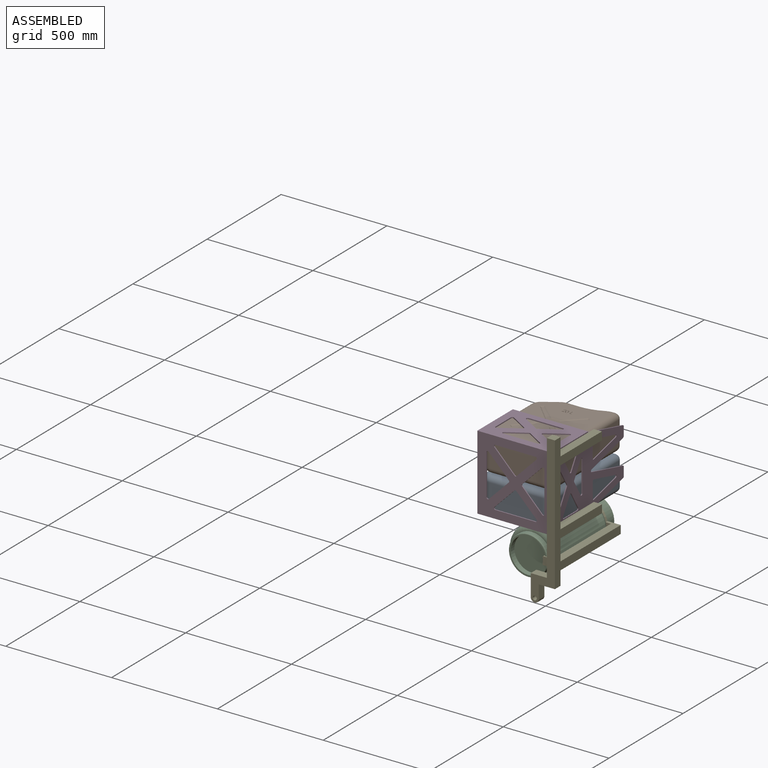
[diagram: assembled view]
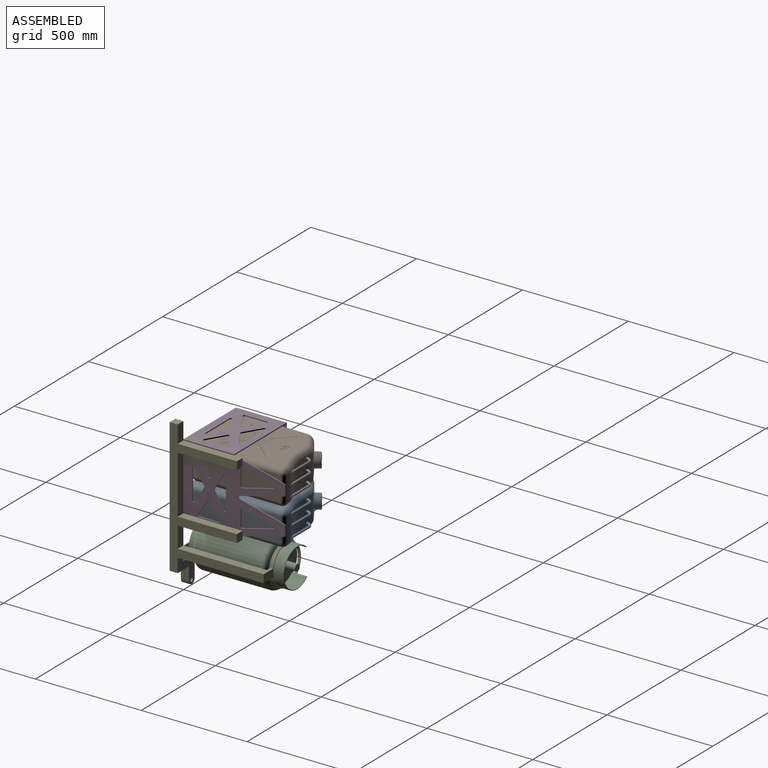
[diagram: assembled view, second angle]
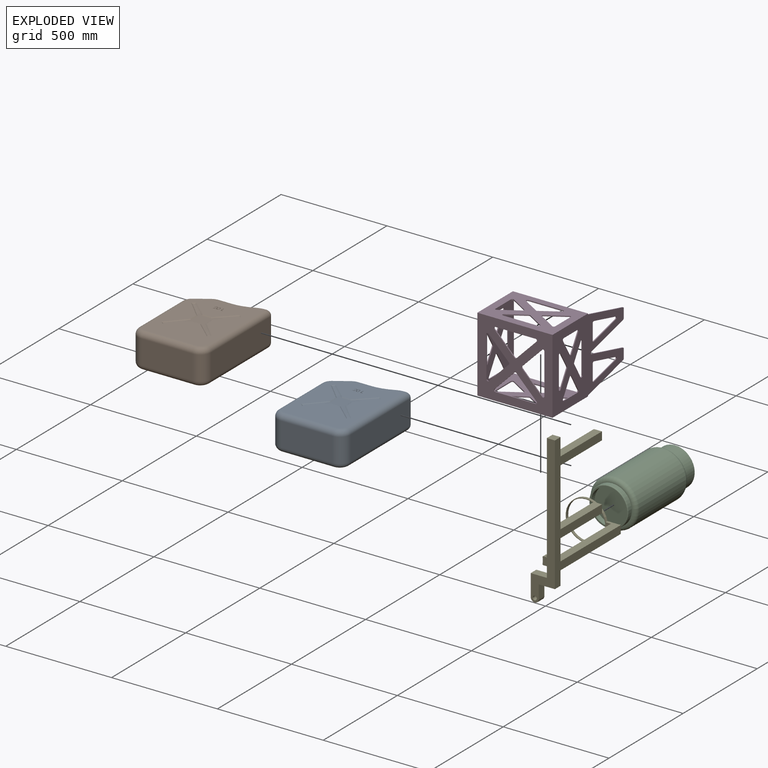
[diagram: exploded view]
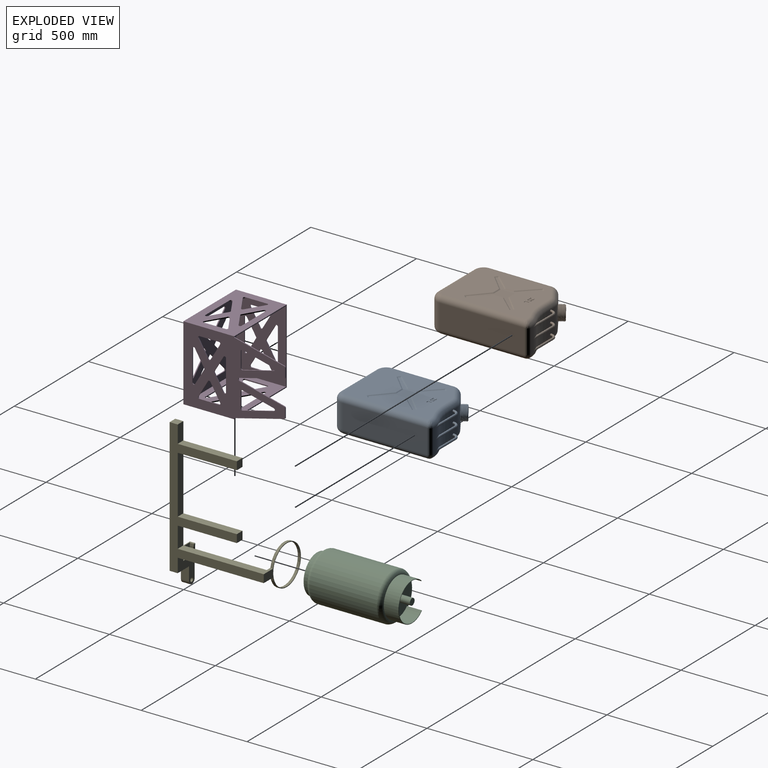
[diagram: exploded view, second angle]
ASSEMBLY  parts=5 mates=4
PART A: 123 faces, bbox 354.8x481.9x166.6 mm
  f0: cylinder r=213.36mm len=114.3mm, axis (0,0,-1), area 11122.5mm2, adj f2,f3,f4,f5,f9,f24,f42,f120
  f1: cylinder r=99.06mm len=114.3mm, axis (0,0,-1), area 4296.2mm2, adj f2,f3,f4,f5,f18,f20,f38,f120
  f2: plane 4.9x0.46mm, normal (-0.44,0.9,0), area 2.2mm2, adj f0,f1,f22,f122
  f3: plane 47.88x0.46mm, normal (-0.44,0.9,0), area 23mm2, adj f0,f1,f120,f122
  f4: plane 47.88x0.46mm, normal (-0.44,0.9,0), area 23mm2, adj f0,f1,f120,f121
  f5: plane 4.9x0.46mm, normal (-0.44,0.9,0), area 2.2mm2, adj f0,f1,f40,f121
  f6: plane 417.2x294.13mm, normal (0,0,-1), area 97143.8mm2, adj f19,f20,f22,f23,f24,f25,f26,f27
  f7: plane 417.2x294.13mm, normal (0,0,1), area 96805.4mm2, adj f33,f35,f36,f37,f38,f39,f40,f41
  f8: plane 115.84x64.41mm, normal (-0.55,0.83,0), area 5166mm2, adj f10,f11,f30,f45,f48,f50,f51,f52
  f9: plane 114.32x58.44mm, normal (0,1,0), area 6434.2mm2, adj f0,f10,f26,f44,f120,f121,f122
  f10: cylinder r=63.5mm len=114.3mm, axis (0,0,-1), area 4233.7mm2, adj f8,f9,f28,f46
  f11: cylinder r=50.8mm len=114.3mm, axis (0,0,-1), area 5733.8mm2, adj f8,f12,f32,f43
  f12: plane 290.66x114.3mm, normal (-1,0,0), area 33222.2mm2, adj f11,f13,f31,f41
  f13: cylinder r=50.8mm len=114.3mm, axis (0,0,-1), area 9120.7mm2, adj f12,f14,f29,f39
  f14: plane 243.33x114.3mm, normal (0,-1,0), area 27812.8mm2, adj f13,f15,f27,f37
  f15: cylinder r=50.8mm len=114.3mm, axis (0,0,-1), area 9120.7mm2, adj f14,f16,f25,f35
  f16: plane 399.42x114.3mm, normal (1,0,0), area 45653.1mm2, adj f15,f17,f23,f33
  f17: cylinder r=17.78mm len=114.3mm, axis (0,0,-1), area 3192.3mm2, adj f16,f18,f21,f34
  f18: plane 114.3x10.03mm, normal (0,1,0), area 1146.5mm2, adj f1,f17,f19,f36
  f19: cylinder r=25.4mm len=25.4mm, axis (1,0,0), area 289.7mm2, adj f6,f18,f20,f21
  f20: torus R=73.66mm, axis (0,0,-1), area 1634.6mm2, adj f1,f6,f19,f22
  f21: bspline ~26.81x25.4mm, area 492.4mm2, adj f17,f19,f23
  f22: cylinder r=25.4mm len=25.4mm, axis (0.9,0.44,0), area 19.4mm2, adj f2,f6,f20,f24
  f23: cylinder r=25.4mm len=399.42mm, axis (0,-1,0), area 15783.9mm2, adj f6,f16,f21,f25
  f24: torus R=238.76mm, axis (0,0,-1), area 4050.4mm2, adj f0,f6,f22,f26
  f25: torus R=25.4mm, axis (0,0,-1), area 2605.3mm2, adj f6,f15,f23,f27
  f26: cylinder r=25.4mm len=58.42mm, axis (1,0,0), area 2330.9mm2, adj f6,f9,f24,f28
  f27: cylinder r=25.4mm len=243.33mm, axis (-1,0,0), area 9708.5mm2, adj f6,f14,f25,f29
  f28: torus R=38.1mm, axis (0,0,-1), area 1263mm2, adj f6,f10,f26,f30
  f29: torus R=25.4mm, axis (0,0,-1), area 2605.3mm2, adj f6,f13,f27,f31
  f30: cylinder r=25.4mm len=76.86mm, axis (0.83,0.55,0), area 3005.3mm2, adj f6,f8,f28,f32
  f31: cylinder r=25.4mm len=290.66mm, axis (0,1,0), area 11596.7mm2, adj f6,f12,f29,f32
  f32: torus R=25.4mm, axis (0,0,-1), area 1637.8mm2, adj f6,f11,f30,f31
  f33: cylinder r=25.4mm len=399.42mm, axis (0,1,0), area 15783.9mm2, adj f7,f16,f34,f35
  f34: bspline ~26.81x25.4mm, area 492.4mm2, adj f17,f33,f36
  f35: torus R=25.4mm, axis (0,0,-1), area 2605.3mm2, adj f7,f15,f33,f37
  f36: cylinder r=25.4mm len=25.4mm, axis (-1,0,0), area 289.7mm2, adj f7,f18,f34,f38
  f37: cylinder r=25.4mm len=243.33mm, axis (1,0,0), area 9708.5mm2, adj f7,f14,f35,f39
  f38: torus R=73.66mm, axis (0,0,-1), area 1634.6mm2, adj f1,f7,f36,f40
  f39: torus R=25.4mm, axis (0,0,-1), area 2605.3mm2, adj f7,f13,f37,f41
  f40: cylinder r=25.4mm len=25.4mm, axis (-0.9,-0.44,0), area 19.4mm2, adj f5,f7,f38,f42
  f41: cylinder r=25.4mm len=290.66mm, axis (0,-1,0), area 11596.7mm2, adj f7,f12,f39,f43
  f42: torus R=238.76mm, axis (0,0,-1), area 4050.4mm2, adj f0,f7,f40,f44
  f43: torus R=25.4mm, axis (0,0,-1), area 1637.8mm2, adj f7,f11,f41,f45
  f44: cylinder r=25.4mm len=58.42mm, axis (-1,0,0), area 2330.9mm2, adj f7,f9,f42,f46
  f45: cylinder r=25.4mm len=76.86mm, axis (-0.83,-0.55,0), area 3005.3mm2, adj f7,f8,f43,f46
  f46: torus R=38.1mm, axis (0,0,-1), area 1263mm2, adj f7,f10,f44,f45
  f47: plane 63.5x53mm, normal (-0.55,0.83,0), area 714.5mm2, adj f48,f49
  f48: cylinder r=31.75mm len=69.79mm, axis (0.55,-0.83,0), area 2013.9mm2, adj f8,f47,f51,f52,f53
  f49: cylinder r=27.94mm len=81.66mm, axis (0.55,-0.83,0), area 10701.7mm2, adj f47,f54
  f50: bspline ~72.59x71.4mm, area 775.4mm2, adj f8,f51,f52,f53
  f51: bspline ~72.2x71.4mm, area 3867mm2, adj f8,f48,f50,f53
  f52: bspline ~72.2x71.4mm, area 3573.4mm2, adj f8,f48,f50,f53
  f53: plane 3.91x3.74mm, normal (0,0,1), area 7.5mm2, adj f48,f50,f51,f52
  f54: plane 55.88x46.64mm, normal (-0.55,0.83,0), area 2452.5mm2, adj f49
  f55: plane 85.31x80.73mm, normal (-0.33,-0.37,0.87), area 575.2mm2, adj f7,f56,f70,f71
  f56: plane 43.53x4.4mm, normal (0,-0.5,0.87), area 212.2mm2, adj f7,f55,f57,f71
  f57: plane 85.22x81.07mm, normal (0.35,-0.35,0.87), area 575mm2, adj f7,f56,f58,f71
  f58: plane 13.64x13.48mm, normal (-0.35,-0.35,0.87), area 75mm2, adj f7,f57,f59,f71
  f59: plane 85.31x80.73mm, normal (-0.37,0.33,0.87), area 575.2mm2, adj f7,f58,f60,f71
  f60: plane 43.53x4.4mm, normal (-0.5,0,0.87), area 212.2mm2, adj f7,f59,f61,f71
  f61: plane 85.22x81.07mm, normal (-0.35,-0.35,0.87), area 575mm2, adj f7,f60,f62,f71
  f62: plane 13.64x13.48mm, normal (-0.35,0.35,0.87), area 75mm2, adj f7,f61,f63,f71
  f63: plane 85.31x80.73mm, normal (0.33,0.37,0.87), area 575.2mm2, adj f7,f62,f64,f71
  f64: plane 43.53x4.4mm, normal (0,0.5,0.87), area 212.2mm2, adj f7,f63,f65,f71
  f65: plane 85.22x81.07mm, normal (-0.35,0.35,0.87), area 575mm2, adj f7,f64,f66,f71
  f66: plane 13.64x13.48mm, normal (0.35,0.35,0.87), area 75mm2, adj f7,f65,f67,f71
  f67: plane 85.31x80.73mm, normal (0.37,-0.33,0.87), area 575.2mm2, adj f7,f66,f68,f71
  f68: plane 43.53x4.4mm, normal (0.5,0,0.87), area 212.2mm2, adj f7,f67,f69,f71
  f69: plane 85.22x81.07mm, normal (0.35,0.35,0.87), area 575mm2, adj f7,f68,f70,f71
  f70: plane 13.64x13.48mm, normal (0.35,-0.35,0.87), area 75mm2, adj f7,f55,f69,f71
  f71: plane 225.41x225.41mm, normal (0,0,1), area 10383.1mm2, adj f55,f56,f57,f58,f59,f60,f61,f62
  f72: extruded ~4.42x4.4mm, area 17.6mm2, adj f7,f73,f83,f84
  f73: plane 2.54x1.71mm, normal (0,1,0), area 4.3mm2, adj f7,f72,f74,f84
  f74: extruded ~6.35x6.21mm, area 25.1mm2, adj f7,f73,f75,f84
  f75: extruded ~5.75x5.66mm, area 22.9mm2, adj f7,f74,f76,f84
  f76: extruded ~6.83x3.85mm, area 20.5mm2, adj f7,f75,f77,f84
  f77: plane 5.09x4.77mm, normal (-0.73,0.68,0), area 17.7mm2, adj f7,f76,f78,f84
  f78: plane 8.87x2.54mm, normal (0,-1,0), area 22.5mm2, adj f7,f77,f79,f84
  f79: plane 2.54x1.95mm, normal (-1,0,0), area 5mm2, adj f7,f78,f80,f84
  f80: plane 12.94x2.54mm, normal (0,1,0), area 32.9mm2, adj f7,f79,f81,f84
  f81: plane 7.88x7.39mm, normal (0.73,-0.68,0), area 27.4mm2, adj f7,f80,f82,f84
  f82: extruded ~5.84x3.6mm, area 17.9mm2, adj f7,f81,f83,f84
  f83: extruded ~4.13x3.86mm, area 16mm2, adj f7,f72,f82,f84
  f84: plane 19.54x12.94mm, normal (0,0,1), area 78.2mm2, adj f72,f73,f74,f75,f76,f77,f78,f79
  f85: plane 19.05x2.54mm, normal (1,0,0), area 48.4mm2, adj f7,f86,f90,f91
  f86: plane 2.54x1.71mm, normal (0,-1,0), area 4.3mm2, adj f7,f85,f87,f91
  f87: plane 17.1x2.54mm, normal (-1,0,0), area 43.4mm2, adj f7,f86,f88,f91
  f88: plane 7.33x2.54mm, normal (0,-1,0), area 18.6mm2, adj f7,f87,f89,f91
  f89: plane 2.54x1.95mm, normal (-1,0,0), area 5mm2, adj f7,f88,f90,f91
  f90: plane 9.04x2.54mm, normal (0,1,0), area 23mm2, adj f7,f85,f89,f91
  f91: plane 19.05x9.04mm, normal (0,0,1), area 46.9mm2, adj f85,f86,f87,f88,f89,f90
  f92: extruded ~10.01x6.37mm, area 33.9mm2, adj f7,f93,f95,f96
  f93: extruded ~10.02x6.37mm, area 33.9mm2, adj f7,f92,f94,f96
  f94: extruded ~10.02x6.58mm, area 34.2mm2, adj f7,f93,f95,f96
  f95: extruded ~10.01x6.58mm, area 34.1mm2, adj f7,f92,f94,f96
  f96: plane 20.03x12.94mm, normal (0,0,1), area 86.8mm2, adj f92,f93,f94,f95,f97,f98,f99,f100
  f97: extruded ~8.06x4.72mm, area 26.6mm2, adj f96,f98,f101,f102
  f98: extruded ~8.06x4.81mm, area 26.6mm2, adj f96,f97,f99,f102
  f99: extruded ~4.79x2.54mm, area 12.4mm2, adj f96,f98,f100,f102
  f100: extruded ~4.09x3.27mm, area 14.2mm2, adj f96,f99,f101,f102
  f101: extruded ~8.06x4.72mm, area 26.6mm2, adj f96,f97,f100,f102
  f102: plane 16.12x9.53mm, normal (0,0,1), area 126.5mm2, adj f97,f98,f99,f100,f101
  f103: plane 85.31x80.73mm, normal (-0.33,-0.37,-0.87), area 575.2mm2, adj f6,f104,f118,f119
  f104: plane 13.64x13.48mm, normal (0.35,-0.35,-0.87), area 75mm2, adj f6,f103,f105,f119
  f105: plane 85.22x81.07mm, normal (0.35,0.35,-0.87), area 575mm2, adj f6,f104,f106,f119
  f106: plane 43.53x4.4mm, normal (0.5,0,-0.87), area 212.2mm2, adj f6,f105,f107,f119
  f107: plane 85.31x80.73mm, normal (0.37,-0.33,-0.87), area 575.2mm2, adj f6,f106,f108,f119
  f108: plane 13.64x13.48mm, normal (0.35,0.35,-0.87), area 75mm2, adj f6,f107,f109,f119
  f109: plane 85.22x81.07mm, normal (-0.35,0.35,-0.87), area 575mm2, adj f6,f108,f110,f119
  f110: plane 43.53x4.4mm, normal (0,0.5,-0.87), area 212.2mm2, adj f6,f109,f111,f119
  f111: plane 85.31x80.73mm, normal (0.33,0.37,-0.87), area 575.2mm2, adj f6,f110,f112,f119
  f112: plane 13.64x13.48mm, normal (-0.35,0.35,-0.87), area 75mm2, adj f6,f111,f113,f119
  f113: plane 85.22x81.07mm, normal (-0.35,-0.35,-0.87), area 575mm2, adj f6,f112,f114,f119
  f114: plane 43.53x4.4mm, normal (-0.5,0,-0.87), area 212.2mm2, adj f6,f113,f115,f119
  f115: plane 85.31x80.73mm, normal (-0.37,0.33,-0.87), area 575.2mm2, adj f6,f114,f116,f119
  f116: plane 13.64x13.48mm, normal (-0.35,-0.35,-0.87), area 75mm2, adj f6,f115,f117,f119
  f117: plane 85.22x81.07mm, normal (0.35,-0.35,-0.87), area 575mm2, adj f6,f116,f118,f119
  f118: plane 43.53x4.4mm, normal (0,-0.5,-0.87), area 212.2mm2, adj f6,f103,f117,f119
  f119: plane 225.41x225.41mm, normal (0,0,-1), area 10383.1mm2, adj f103,f104,f105,f106,f107,f108,f109,f110
  f120: bspline ~165.94x31.69mm, area 4960.8mm2, adj f0,f1,f3,f4,f9
  f121: bspline ~165.94x31.69mm, area 4960.8mm2, adj f0,f1,f4,f5,f9
  f122: bspline ~165.94x31.69mm, area 4960.8mm2, adj f0,f1,f2,f3,f9
PART B: same geometry as A
PART C: 19 faces, bbox 244x244x450.9 mm
  f0: cylinder r=112.71mm len=314.96mm, axis (0,0,-1), area 223052.6mm2, adj f3,f4
  f1: plane 184.79x184.79mm, normal (0,0,1), area 184mm2, adj f4,f5
  f2: plane 184.79x184.79mm, normal (0,0,-1), area 24671.3mm2, adj f3,f10,f11,f12,f13,f15
  f3: torus R=92.39mm, axis (0,0,1), area 21123.7mm2, adj f0,f2
  f4: torus R=92.39mm, axis (0,0,1), area 21123.7mm2, adj f0,f1
  f5: cylinder r=92.08mm len=184.15mm, axis (0,0,-1), area 12490.3mm2, adj f1,f7
  f6: plane 176.53x176.53mm, normal (0,0,1), area 3066.8mm2, adj f7,f8
  f7: torus R=88.27mm, axis (0,0,1), area 3410.3mm2, adj f5,f6
  f8: cylinder r=82.55mm len=165.1mm, axis (0,0,1), area 13174.4mm2, adj f6,f9
  f9: plane 165.1x165.1mm, normal (0,0,1), area 21408.4mm2, adj f8
  f10: plane 69.85x2.38mm, normal (-0.75,0.66,0), area 221.8mm2, adj f2,f11,f13,f14,f17,f18
  f11: cylinder r=92.08mm len=184.15mm, axis (0,0,1), area 29783.1mm2, adj f2,f10,f12,f17
  f12: plane 69.86x2.27mm, normal (0.71,0.7,0), area 221.1mm2, adj f2,f11,f13,f14,f17,f18
  f13: cylinder r=88.9mm len=177.8mm, axis (0,0,1), area 28743.2mm2, adj f2,f10,f12,f18
  f14: plane 181.61x156.71mm, normal (0,0,-1), area 271mm2, adj f10,f12,f17,f18
  f15: cylinder r=15.88mm len=69.85mm, axis (0,0,1), area 6967.2mm2, adj f2,f16
  f16: plane 31.75x31.75mm, normal (0,0,-1), area 791.7mm2, adj f15
  f17: torus R=90.8mm, axis (0,0,-1), area 862mm2, adj f10,f11,f12,f14
  f18: torus R=90.17mm, axis (0,0,-1), area 840.5mm2, adj f10,f12,f13,f14
PART D: 154 faces, bbox 354x355x481 mm
  f0: plane 344.49x234.95mm, normal (0,1,0), area 59338.3mm2, adj f51,f52,f103,f104,f130,f131,f132,f133
  f1: plane 354.01x239.71mm, normal (0,-1,0), area 63262.2mm2, adj f52,f53,f102,f129,f130,f131,f132,f133
  f2: cylinder r=6.35mm len=6.47mm, axis (0,1,0), area 32.3mm2, adj f3,f48,f49,f50
  f3: plane 73.53x43.51mm, normal (-0.51,0,-0.86), area 406.9mm2, adj f2,f4,f49,f50
  f4: cylinder r=6.35mm len=11.82mm, axis (0,1,0), area 78.8mm2, adj f3,f5,f49,f50
  f5: plane 147.07x4.76mm, normal (0,0,1), area 700.4mm2, adj f4,f6,f49,f50
  f6: cylinder r=6.35mm len=11.82mm, axis (0,1,0), area 78.8mm2, adj f5,f48,f49,f50
  f7: cylinder r=6.35mm len=10.93mm, axis (0,1,0), area 62.7mm2, adj f8,f42,f49,f50
  f8: plane 77.92x46.1mm, normal (-0.51,0,0.86), area 431.2mm2, adj f7,f9,f49,f50
  f9: cylinder r=6.35mm len=9.58mm, axis (0,1,0), area 63.7mm2, adj f8,f10,f49,f50
  f10: plane 92.21x4.76mm, normal (1,0,0), area 439.1mm2, adj f9,f11,f49,f50
  f11: cylinder r=6.35mm len=9.58mm, axis (0,1,0), area 63.7mm2, adj f10,f42,f49,f50
  f12: plane 77.92x46.1mm, normal (0.51,0,-0.86), area 431.2mm2, adj f13,f43,f49,f50
  f13: cylinder r=6.35mm len=9.58mm, axis (0,1,0), area 63.7mm2, adj f12,f14,f49,f50
  f14: plane 92.21x4.76mm, normal (-1,0,0), area 439.1mm2, adj f13,f15,f49,f50
  f15: cylinder r=6.35mm len=9.58mm, axis (0,1,0), area 63.7mm2, adj f14,f16,f49,f50
  f16: plane 77.92x46.1mm, normal (0.51,0,0.86), area 431.2mm2, adj f15,f43,f49,f50
  f17: plane 73.53x43.51mm, normal (0.51,0,0.86), area 406.9mm2, adj f18,f44,f49,f50
  f18: cylinder r=6.35mm len=11.82mm, axis (0,1,0), area 78.8mm2, adj f17,f19,f49,f50
  f19: plane 147.07x4.76mm, normal (0,0,-1), area 700.4mm2, adj f18,f20,f49,f50
  f20: cylinder r=6.35mm len=11.82mm, axis (0,1,0), area 78.8mm2, adj f19,f21,f49,f50
  f21: plane 73.53x43.51mm, normal (-0.51,0,0.86), area 406.9mm2, adj f20,f44,f49,f50
  f22: plane 74.49x4.76mm, normal (0,0,1), area 354.8mm2, adj f23,f45,f49,f50
  f23: cylinder r=6.35mm len=7.9mm, axis (0,1,0), area 55mm2, adj f22,f24,f49,f50
  f24: plane 148.01x37.25mm, normal (0.97,0,-0.24), area 726.9mm2, adj f23,f25,f49,f50
  f25: cylinder r=6.35mm len=12.32mm, axis (0,1,0), area 80.1mm2, adj f24,f26,f49,f50
  f26: plane 148.01x37.25mm, normal (-0.97,0,-0.24), area 726.9mm2, adj f25,f45,f49,f50
  f27: plane 74.49x4.76mm, normal (0,0,1), area 354.8mm2, adj f28,f46,f49,f50
  f28: cylinder r=6.35mm len=7.9mm, axis (0,1,0), area 55mm2, adj f27,f29,f49,f50
  f29: plane 148.01x37.25mm, normal (0.97,0,-0.24), area 726.9mm2, adj f28,f30,f49,f50
  f30: cylinder r=6.35mm len=12.32mm, axis (0,1,0), area 80.1mm2, adj f29,f31,f49,f50
  f31: plane 148.01x37.25mm, normal (-0.97,0,-0.24), area 726.9mm2, adj f30,f46,f49,f50
  f32: plane 236.5x59.51mm, normal (-0.97,0,0.24), area 1161.4mm2, adj f47,f49,f50,f52
  f33: plane 236.5x59.51mm, normal (0.97,0,0.24), area 1161.4mm2, adj f34,f49,f50,f52
  f34: cylinder r=6.35mm len=6.16mm, axis (0,1,0), area 40mm2, adj f33,f35,f49,f50
  f35: plane 40.9x4.76mm, normal (0,0,1), area 194.8mm2, adj f34,f36,f49,f50
  f36: cylinder r=6.35mm len=6.16mm, axis (0,1,0), area 40mm2, adj f35,f37,f49,f50
  f37: plane 212.03x53.36mm, normal (-0.97,0,0.24), area 1041.3mm2, adj f36,f38,f49,f50
  f38: cylinder r=6.35mm len=12.32mm, axis (0,1,0), area 80.1mm2, adj f37,f39,f49,f50
  f39: plane 212.03x53.36mm, normal (0.97,0,0.24), area 1041.3mm2, adj f38,f40,f49,f50
  f40: cylinder r=6.35mm len=6.16mm, axis (0,1,0), area 40mm2, adj f39,f41,f49,f50
  f41: plane 40.9x4.76mm, normal (0,0,1), area 194.8mm2, adj f40,f47,f49,f50
  f42: plane 77.92x46.1mm, normal (-0.51,0,-0.86), area 431.2mm2, adj f7,f11,f49,f50
  f43: cylinder r=6.35mm len=10.93mm, axis (0,1,0), area 62.7mm2, adj f12,f16,f49,f50
  f44: cylinder r=6.35mm len=6.47mm, axis (0,1,0), area 32.3mm2, adj f17,f21,f49,f50
  f45: cylinder r=6.35mm len=7.9mm, axis (0,1,0), area 55mm2, adj f22,f26,f49,f50
  f46: cylinder r=6.35mm len=7.9mm, axis (0,1,0), area 55mm2, adj f27,f31,f49,f50
  f47: cylinder r=6.35mm len=6.16mm, axis (0,1,0), area 40mm2, adj f32,f41,f49,f50
  f48: plane 73.53x43.51mm, normal (0.51,0,-0.86), area 406.9mm2, adj f2,f6,f49,f50
  f49: plane 476.25x344.49mm, normal (0,-1,0), area 97144.8mm2, adj f2,f3,f4,f5,f6,f7,f8,f9
  f50: plane 481.01x354.01mm, normal (0,1,0), area 101068.6mm2, adj f2,f3,f4,f5,f6,f7,f8,f9
  f51: plane 345.44x234.95mm, normal (1,0,0), area 55234.4mm2, adj f0,f49,f52,f54,f55,f56,f57,f58
  f52: plane 354.97x354.01mm, normal (0,0,1), area 5021.7mm2, adj f0,f1,f32,f33,f50,f51,f53,f102
  f53: plane 354.97x239.71mm, normal (-1,0,0), area 59162.9mm2, adj f1,f50,f52,f54,f55,f56,f57,f58
  f54: plane 81.64x49.65mm, normal (0,0.52,0.85), area 455.1mm2, adj f51,f53,f55,f57
  f55: cylinder r=6.35mm len=6.6mm, axis (1,0,0), area 33mm2, adj f51,f53,f54,f56
  f56: plane 81.64x49.65mm, normal (0,-0.52,0.85), area 455.1mm2, adj f51,f53,f55,f58
  f57: cylinder r=6.35mm len=11.78mm, axis (1,0,0), area 78.5mm2, adj f51,f53,f54,f59
  f58: cylinder r=6.35mm len=11.78mm, axis (1,0,0), area 78.5mm2, adj f51,f53,f56,f59
  f59: plane 163.28x4.76mm, normal (0,0,-1), area 777.6mm2, adj f51,f53,f57,f58
  f60: cylinder r=6.35mm len=9.65mm, axis (1,0,0), area 64mm2, adj f51,f53,f61,f65
  f61: plane 85.73x52.14mm, normal (0,0.52,-0.85), area 477.9mm2, adj f51,f53,f60,f62
  f62: cylinder r=6.35mm len=10.85mm, axis (1,0,0), area 62mm2, adj f51,f53,f61,f63
  f63: plane 85.73x52.14mm, normal (0,0.52,0.85), area 477.9mm2, adj f51,f53,f62,f64
  f64: cylinder r=6.35mm len=9.65mm, axis (1,0,0), area 64mm2, adj f51,f53,f63,f65
  f65: plane 104.27x4.76mm, normal (0,-1,0), area 496.6mm2, adj f51,f53,f60,f64
  f66: cylinder r=6.35mm len=10.85mm, axis (1,0,0), area 62mm2, adj f51,f53,f67,f69
  f67: plane 85.73x52.14mm, normal (0,-0.52,-0.85), area 477.9mm2, adj f51,f53,f66,f68
  f68: cylinder r=6.35mm len=9.65mm, axis (1,0,0), area 64mm2, adj f51,f53,f67,f70
  f69: plane 85.73x52.14mm, normal (0,-0.52,0.85), area 477.9mm2, adj f51,f53,f66,f71
  f70: plane 104.27x4.76mm, normal (0,1,0), area 496.6mm2, adj f51,f53,f68,f71
  f71: cylinder r=6.35mm len=9.65mm, axis (1,0,0), area 64mm2, adj f51,f53,f69,f70
  f72: cylinder r=6.35mm len=6.6mm, axis (1,0,0), area 33mm2, adj f51,f53,f73,f75
  f73: plane 81.64x49.65mm, normal (0,0.52,-0.85), area 455.1mm2, adj f51,f53,f72,f74
  f74: cylinder r=6.35mm len=11.78mm, axis (1,0,0), area 78.5mm2, adj f51,f53,f73,f76
  f75: plane 81.64x49.65mm, normal (0,-0.52,-0.85), area 455.1mm2, adj f51,f53,f72,f77
  f76: plane 163.28x4.76mm, normal (0,0,1), area 777.6mm2, adj f51,f53,f74,f77
  f77: cylinder r=6.35mm len=11.78mm, axis (1,0,0), area 78.5mm2, adj f51,f53,f75,f76
  f78: plane 85.73x52.14mm, normal (0,0.52,-0.85), area 477.9mm2, adj f79,f101,f102,f103
  f79: cylinder r=6.35mm len=9.65mm, axis (-1,0,0), area 64mm2, adj f78,f80,f102,f103
  f80: plane 104.27x4.76mm, normal (0,-1,0), area 496.6mm2, adj f79,f81,f102,f103
  f81: cylinder r=6.35mm len=9.65mm, axis (-1,0,0), area 64mm2, adj f80,f82,f102,f103
  f82: plane 85.73x52.14mm, normal (0,0.52,0.85), area 477.9mm2, adj f81,f101,f102,f103
  f83: plane 81.64x49.65mm, normal (0,0.52,0.85), area 455.1mm2, adj f84,f98,f102,f103
  f84: cylinder r=6.35mm len=11.78mm, axis (-1,0,0), area 78.5mm2, adj f83,f85,f102,f103
  f85: plane 163.28x4.76mm, normal (0,0,-1), area 777.6mm2, adj f84,f86,f102,f103
  f86: cylinder r=6.35mm len=11.78mm, axis (-1,0,0), area 78.5mm2, adj f85,f87,f102,f103
  f87: plane 81.64x49.65mm, normal (0,-0.52,0.85), area 455.1mm2, adj f86,f98,f102,f103
  f88: cylinder r=6.35mm len=10.85mm, axis (-1,0,0), area 62mm2, adj f89,f99,f102,f103
  f89: plane 85.73x52.14mm, normal (0,-0.52,0.85), area 477.9mm2, adj f88,f90,f102,f103
  f90: cylinder r=6.35mm len=9.65mm, axis (-1,0,0), area 64mm2, adj f89,f91,f102,f103
  f91: plane 104.27x4.76mm, normal (0,1,0), area 496.6mm2, adj f90,f92,f102,f103
  f92: cylinder r=6.35mm len=9.65mm, axis (-1,0,0), area 64mm2, adj f91,f99,f102,f103
  f93: cylinder r=6.35mm len=6.6mm, axis (-1,0,0), area 33mm2, adj f94,f100,f102,f103
  f94: plane 81.64x49.65mm, normal (0,-0.52,-0.85), area 455.1mm2, adj f93,f95,f102,f103
  f95: cylinder r=6.35mm len=11.78mm, axis (-1,0,0), area 78.5mm2, adj f94,f96,f102,f103
  f96: plane 163.28x4.76mm, normal (0,0,1), area 777.6mm2, adj f95,f97,f102,f103
  f97: cylinder r=6.35mm len=11.78mm, axis (-1,0,0), area 78.5mm2, adj f96,f100,f102,f103
  f98: cylinder r=6.35mm len=6.6mm, axis (-1,0,0), area 33mm2, adj f83,f87,f102,f103
  f99: plane 85.73x52.14mm, normal (0,-0.52,-0.85), area 477.9mm2, adj f88,f92,f102,f103
  f100: plane 81.64x49.65mm, normal (0,0.52,-0.85), area 455.1mm2, adj f93,f97,f102,f103
  f101: cylinder r=6.35mm len=10.85mm, axis (-1,0,0), area 62mm2, adj f78,f82,f102,f103
  f102: plane 354.97x239.71mm, normal (1,0,0), area 59162.9mm2, adj f1,f50,f52,f78,f79,f80,f81,f82
  f103: plane 345.44x234.95mm, normal (-1,0,0), area 55234.4mm2, adj f0,f49,f52,f78,f79,f80,f81,f82
  f104: plane 345.44x344.49mm, normal (0,0,1), area 70141.7mm2, adj f0,f49,f51,f103,f105,f106,f107,f108
  f105: plane 96.38x95.06mm, normal (0.7,-0.71,0), area 644.7mm2, adj f104,f106,f128,f129
  f106: cylinder r=6.35mm len=9.04mm, axis (0,0,1), area 47.9mm2, adj f104,f105,f107,f129
  f107: plane 96.38x95.06mm, normal (0.7,0.71,0), area 644.7mm2, adj f104,f106,f108,f129
  f108: cylinder r=6.35mm len=10.81mm, axis (0,0,1), area 71mm2, adj f104,f107,f109,f129
  f109: plane 190.13x4.76mm, normal (-1,0,0), area 905.5mm2, adj f104,f108,f128,f129
  f110: plane 96.3x94.98mm, normal (-0.7,-0.71,0), area 644.1mm2, adj f104,f111,f125,f129
  f111: cylinder r=6.35mm len=8.92mm, axis (0,0,1), area 47.1mm2, adj f104,f110,f112,f129
  f112: plane 96.3x94.98mm, normal (0.7,-0.71,0), area 644.1mm2, adj f104,f111,f113,f129
  f113: cylinder r=6.35mm len=10.87mm, axis (0,0,1), area 71.5mm2, adj f104,f112,f114,f129
  f114: plane 192.59x4.76mm, normal (0,1,0), area 917.2mm2, adj f104,f113,f125,f129
  f115: cylinder r=6.35mm len=10.81mm, axis (0,0,1), area 71mm2, adj f104,f116,f126,f129
  f116: plane 96.38x95.06mm, normal (-0.7,0.71,0), area 644.7mm2, adj f104,f115,f117,f129
  f117: cylinder r=6.35mm len=9.04mm, axis (0,0,1), area 47.9mm2, adj f104,f116,f118,f129
  f118: plane 96.38x95.06mm, normal (-0.7,-0.71,0), area 644.7mm2, adj f104,f117,f119,f129
  f119: cylinder r=6.35mm len=10.81mm, axis (0,0,1), area 71mm2, adj f104,f118,f126,f129
  f120: cylinder r=6.35mm len=10.87mm, axis (0,0,1), area 71.5mm2, adj f104,f121,f127,f129
  f121: plane 96.3x94.98mm, normal (0.7,0.71,0), area 644.1mm2, adj f104,f120,f122,f129
  f122: cylinder r=6.35mm len=8.92mm, axis (0,0,1), area 47.1mm2, adj f104,f121,f123,f129
  f123: plane 96.3x94.98mm, normal (-0.7,0.71,0), area 644.1mm2, adj f104,f122,f124,f129
  f124: cylinder r=6.35mm len=10.87mm, axis (0,0,1), area 71.5mm2, adj f104,f123,f127,f129
  f125: cylinder r=6.35mm len=10.87mm, axis (0,0,1), area 71.5mm2, adj f104,f110,f114,f129
  f126: plane 190.13x4.76mm, normal (1,0,0), area 905.5mm2, adj f104,f115,f119,f129
  f127: plane 192.59x4.76mm, normal (0,-1,0), area 917.2mm2, adj f104,f120,f124,f129
  f128: cylinder r=6.35mm len=10.81mm, axis (0,0,1), area 71mm2, adj f104,f105,f109,f129
  f129: plane 354.97x354.01mm, normal (0,0,-1), area 76804mm2, adj f1,f50,f53,f102,f105,f106,f107,f108
  f130: plane 73.53x43.51mm, normal (0.51,0,0.86), area 406.9mm2, adj f0,f1,f131,f134
  f131: cylinder r=6.35mm len=6.47mm, axis (0,1,0), area 32.3mm2, adj f0,f1,f130,f132
  f132: plane 73.53x43.51mm, normal (-0.51,0,0.86), area 406.9mm2, adj f0,f1,f131,f133
  f133: cylinder r=6.35mm len=11.82mm, axis (0,1,0), area 78.8mm2, adj f0,f1,f132,f135
  f134: cylinder r=6.35mm len=11.82mm, axis (0,1,0), area 78.8mm2, adj f0,f1,f130,f135
  f135: plane 147.07x4.76mm, normal (0,0,-1), area 700.4mm2, adj f0,f1,f133,f134
  f136: plane 77.92x46.1mm, normal (-0.51,0,0.86), area 431.2mm2, adj f0,f1,f137,f141
  f137: cylinder r=6.35mm len=10.93mm, axis (0,1,0), area 62.7mm2, adj f0,f1,f136,f138
  f138: plane 77.92x46.1mm, normal (-0.51,0,-0.86), area 431.2mm2, adj f0,f1,f137,f139
  f139: cylinder r=6.35mm len=9.58mm, axis (0,1,0), area 63.7mm2, adj f0,f1,f138,f140
  f140: plane 92.21x4.76mm, normal (1,0,0), area 439.1mm2, adj f0,f1,f139,f141
  f141: cylinder r=6.35mm len=9.58mm, axis (0,1,0), area 63.7mm2, adj f0,f1,f136,f140
  f142: plane 77.92x46.1mm, normal (0.51,0,-0.86), area 431.2mm2, adj f0,f1,f143,f146
  f143: cylinder r=6.35mm len=10.93mm, axis (0,1,0), area 62.7mm2, adj f0,f1,f142,f144
  f144: plane 77.92x46.1mm, normal (0.51,0,0.86), area 431.2mm2, adj f0,f1,f143,f145
  f145: cylinder r=6.35mm len=9.58mm, axis (0,1,0), area 63.7mm2, adj f0,f1,f144,f147
  f146: cylinder r=6.35mm len=9.58mm, axis (0,1,0), area 63.7mm2, adj f0,f1,f142,f147
  f147: plane 92.21x4.76mm, normal (-1,0,0), area 439.1mm2, adj f0,f1,f145,f146
  f148: plane 73.53x43.51mm, normal (-0.51,0,-0.86), area 406.9mm2, adj f0,f1,f149,f153
  f149: cylinder r=6.35mm len=6.47mm, axis (0,1,0), area 32.3mm2, adj f0,f1,f148,f150
  f150: plane 73.53x43.51mm, normal (0.51,0,-0.86), area 406.9mm2, adj f0,f1,f149,f151
  f151: cylinder r=6.35mm len=11.82mm, axis (0,1,0), area 78.8mm2, adj f0,f1,f150,f152
  f152: plane 147.07x4.76mm, normal (0,0,1), area 700.4mm2, adj f0,f1,f151,f153
  f153: cylinder r=6.35mm len=11.82mm, axis (0,1,0), area 78.8mm2, adj f0,f1,f148,f152
PART E: 44 faces, bbox 717.6x251.5x444.5 mm
  f0: plane 148.68x114.3mm, normal (0,0,1), area 8127.1mm2, adj f3,f13,f14,f15,f16,f17,f18,f19
  f1: plane 279.4x38.1mm, normal (-1,0,0), area 10645.1mm2, adj f2,f12,f13,f14
  f2: plane 98.97x38.1mm, normal (0,0,1), area 3770.8mm2, adj f1,f13,f14,f21
  f3: plane 76.2x38.1mm, normal (-1,0,0), area 2903.2mm2, adj f0,f4,f13,f16
  f4: plane 717.55x114.3mm, normal (0,0,-1), area 29801.1mm2, adj f3,f5,f13,f14,f15,f16,f17,f18
  f5: plane 38.1x38.1mm, normal (1,0,0), area 1451.6mm2, adj f4,f6,f13,f14
  f6: plane 82.55x38.1mm, normal (0,0,1), area 3145.2mm2, adj f5,f7,f13,f14
  f7: plane 279.4x38.1mm, normal (1,0,0), area 10645.1mm2, adj f6,f8,f13,f14
  f8: plane 38.1x38.1mm, normal (0,0,1), area 1451.6mm2, adj f7,f9,f13,f14
  f9: plane 279.4x38.1mm, normal (-1,0,0), area 10645.1mm2, adj f8,f10,f13,f14
  f10: plane 273.05x38.1mm, normal (0,0,1), area 10403.2mm2, adj f9,f11,f13,f14
  f11: plane 279.4x38.1mm, normal (1,0,0), area 10645.1mm2, adj f10,f12,f13,f14
  f12: plane 38.1x38.1mm, normal (0,0,1), area 1451.6mm2, adj f1,f11,f13,f14
  f13: plane 635x444.5mm, normal (0,1,0), area 60967.6mm2, adj f0,f1,f2,f3,f4,f5,f6,f7
  f14: plane 596.9x431.8mm, normal (0,-1,0), area 58851mm2, adj f0,f1,f2,f4,f5,f6,f7,f8
  f15: plane 76.2x38.1mm, normal (1,0,0), area 2903.2mm2, adj f0,f4,f14,f18
  f16: plane 63.5x38.1mm, normal (0,1,0), area 2419.3mm2, adj f0,f3,f4,f17
  f17: cylinder r=19.05mm len=38.1mm, axis (0,0,1), area 2280.2mm2, adj f0,f4,f16,f18
  f18: plane 101.6x38.1mm, normal (0,-1,0), area 3871mm2, adj f0,f4,f15,f17
  f19: cylinder r=9.53mm len=38.1mm, axis (0,0,1), area 2280.2mm2, adj f0,f4
  f20: plane 406.4x81.28mm, normal (-1,0,0), area 16036.8mm2, adj f0,f13,f14,f22,f24,f25,f29,f33
  f21: plane 406.4x62.88mm, normal (1,0,0), area 15798.6mm2, adj f2,f13,f14,f22,f41,f43
  f22: plane 251.46x190.5mm, normal (0,0,1), area 4215.4mm2, adj f13,f20,f21,f41,f42
  f23: plane 43.18x21.59mm, normal (1,0,0), area 238.2mm2, adj f14,f24,f25,f31,f37,f40
  f24: plane 41.24x38.03mm, normal (0,0,1), area 1402.6mm2, adj f14,f20,f23,f26,f34,f40
  f25: plane 46.99x38.03mm, normal (0,0,-1), area 1754.1mm2, adj f14,f20,f23,f27,f29,f31
  f26: cylinder r=92.08mm len=31.72mm, axis (0,0,-1), area 536.5mm2, adj f24,f34,f38,f40
  f27: cylinder r=82.55mm len=29.07mm, axis (0,0,-1), area 630.9mm2, adj f25,f29,f31,f32
  f28: plane 30.41x3.25mm, normal (0,0,1), area 58.2mm2, adj f32,f33,f37,f38
  f29: cylinder r=3.81mm len=21.59mm, axis (0,0,-1), area 143.8mm2, adj f20,f25,f27,f30
  f30: sphere r=3.81mm, area 25.4mm2, adj f29,f32,f33
  f31: cylinder r=3.81mm len=21.59mm, axis (0,0,-1), area 143.8mm2, adj f23,f25,f27,f35
  f32: torus R=86.36mm, axis (0,0,1), area 177.8mm2, adj f27,f28,f30,f35
  f33: cylinder r=3.81mm len=3.81mm, axis (0,1,0), area 11.6mm2, adj f20,f28,f30,f36
  f34: cylinder r=3.81mm len=16.83mm, axis (0,0,-1), area 89.6mm2, adj f20,f24,f26,f36
  f35: sphere r=3.81mm, area 25.4mm2, adj f31,f32,f37
  f36: sphere r=3.81mm, area 20.3mm2, adj f33,f34,f38
  f37: cylinder r=3.81mm len=3.81mm, axis (0,-1,0), area 11.6mm2, adj f23,f28,f35,f39
  f38: torus R=88.27mm, axis (0,0,1), area 187.9mm2, adj f26,f28,f36,f39
  f39: sphere r=3.81mm, area 20.3mm2, adj f37,f38,f40
  f40: cylinder r=3.81mm len=16.83mm, axis (0,0,-1), area 89.6mm2, adj f23,f24,f26,f39
  f41: cylinder r=95.25mm len=190.5mm, axis (0,0,1), area 7113.5mm2, adj f20,f21,f22,f43
  f42: cylinder r=92.08mm len=184.15mm, axis (0,0,1), area 7347.3mm2, adj f22,f43
  f43: plane 213.36x190.5mm, normal (0,0,-1), area 2763.8mm2, adj f14,f20,f21,f41,f42
PLACE A t=(-155.21,254.41,367.05)mm
PLACE B t=(-155.21,253.65,542.28)mm
PLACE C rot(axis=(0.58,-0.58,0.58),120deg) t=(-96.13,400.59,161.62)mm
PLACE D rot(axis=(-0.58,-0.58,-0.58),120deg) t=(22.53,-10.43,442.27)mm
PLACE E rot(axis=(-0.58,-0.58,-0.58),120deg) t=(22.53,0.88,452.63)mm
MATE planar D.f129 <-> E.f2  axis (0,-1,0) through (22.53,14.83,279.67)mm
MATE fastened A.f12 <-> D.f0  axis (-1,0,0) through (-327.67,71.21,367.05)mm
MATE fastened B.f12 <-> D.f0  axis (-1,0,0) through (-327.67,70.45,542.28)mm
MATE fastened C.f8 <-> E.f24  axis (0,-1,0) through (-96.13,19.59,161.62)mm
